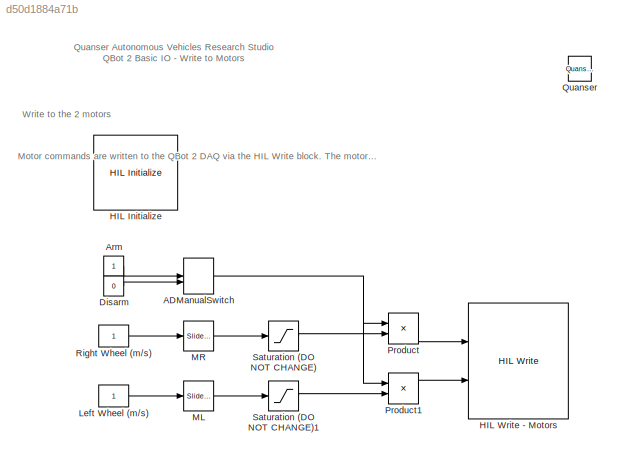
MODEL slx_d50d1884a71b
KIND model
CONFIG AbsTol = auto
CONFIG EnableMultiTasking = on
CONFIG FixedStep = 0.001
CONFIG InitFcn = set_param('Write_Motors/ADManualSwitch', 'sw', '0');
CONFIG MaxStep = auto
CONFIG MinStep = auto
CONFIG RelTol = 1e-3
CONFIG SampleTimeConstraint = Unconstrained
CONFIG Solver = ode2
CONFIG SolverName = ode2
CONFIG StartTime = 0.0
CONFIG StopTime = inf
WORKSPACE source: MAT-file member
WORKSPACE target_system = 1
BLOCK [ManualSwitch] ADManualSwitch
  CurrentSetting = 0
BLOCK [Constant] Arm
BLOCK [Constant] Disarm
  Value = 0
BLOCK [Reference] HIL Initialize  REF=quarc_library/Data Acquisition/Generic/Configuration/HIL Initialize
  AttributesFormatString = %<object_name> (%<board_type>-%<board_number>)
  Ports = []
  Priority = -99
  SourceBlock = quarc_library/Data Acquisition/Generic/Configuration/HIL Initialize
  SourceProductName = QUARC Targets
  SourceType = HIL Initialize
  UserDataPersistent = on
BLOCK [Reference] HIL Write - Motors  REF=quarc_library/Data Acquisition/Generic/Immediate I//O/HIL Write
  AttributesFormatString = (%<object_name>)
  Ports = [2]
  SourceBlock = quarc_library/Data Acquisition/Generic/Immediate I//O/HIL Write
  SourceProductName = QUARC Targets
  SourceType = HIL Write
  UserDataPersistent = on
BLOCK [Constant] Left Wheel (m//s)
BLOCK [Reference] ML  REF=simulink/Math
Operations/Slider
Gain
  Ports = [1, 1]
  SourceBlock = simulink/Math\nOperations/Slider\nGain
  SourceProductBaseCode = SL
  SourceProductName = Simulink
  SourceType = Slider Gain
BLOCK [Reference] MR  REF=simulink/Math
Operations/Slider
Gain
  Ports = [1, 1]
  SourceBlock = simulink/Math\nOperations/Slider\nGain
  SourceProductBaseCode = SL
  SourceProductName = Simulink
  SourceType = Slider Gain
BLOCK [Product] Product
  InputSameDT = off
  OutDataTypeStr = Inherit: Inherit via internal rule
  Ports = [2, 1]
  RndMeth = Floor
  SaturateOnIntegerOverflow = off
BLOCK [Product] Product1
  InputSameDT = off
  OutDataTypeStr = Inherit: Inherit via internal rule
  Ports = [2, 1]
  RndMeth = Floor
  SaturateOnIntegerOverflow = off
BLOCK [Reference] Quanser  REF=quarc_library/Logos/Quanser
  Ports = []
  SourceBlock = quarc_library/Logos/Quanser
  SourceProductName = QUARC Targets
  SourceType = Powered by Quanser
BLOCK [Constant] Right Wheel (m//s)
BLOCK [Saturate] Saturation (DO NOT CHANGE)
  InputPortMap = u0
  LowerLimit = -0.7
  Ports = [1, 1]
  UpperLimit = 0.7
BLOCK [Saturate] Saturation (DO NOT CHANGE)1
  InputPortMap = u0
  LowerLimit = -0.7
  Ports = [1, 1]
  UpperLimit = 0.7
ANNOTATION (root): Motor commands are written to the QBot 2 DAQ via the HIL Write block. The motor commands are in m/s.
ANNOTATION (root): Quanser Autonomous Vehicles Research Studio QBot 2 Basic IO - Write to Motors
ANNOTATION (root): Write to the 2 motors
NET ADManualSwitch:1 -> Product1:1, Product:1
LINE Arm:1 -> ADManualSwitch:1
LINE Disarm:1 -> ADManualSwitch:2
LINE Left Wheel (m//s):1 -> ML:1
LINE ML:1 -> Saturation (DO NOT CHANGE)1:1
LINE MR:1 -> Saturation (DO NOT CHANGE):1
LINE Product1:1 -> HIL Write - Motors:2
LINE Product:1 -> HIL Write - Motors:1
LINE Right Wheel (m//s):1 -> MR:1
LINE Saturation (DO NOT CHANGE)1:1 -> Product1:2
LINE Saturation (DO NOT CHANGE):1 -> Product:2
note: NET lines group one-source signal fan-out (src -> all destinations, sorted); 1:1 wires keep LINE
